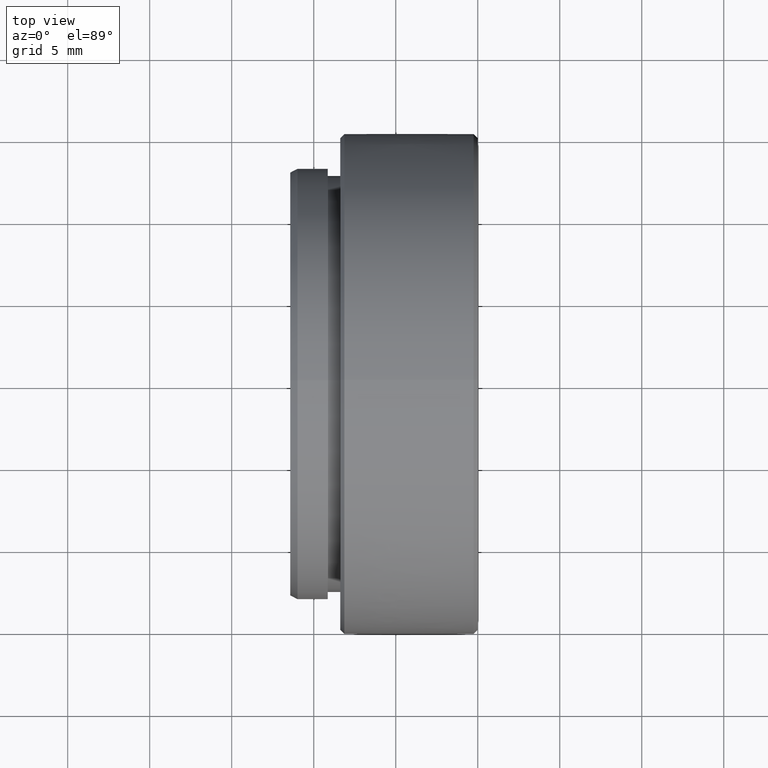
[diagram: clean part render]
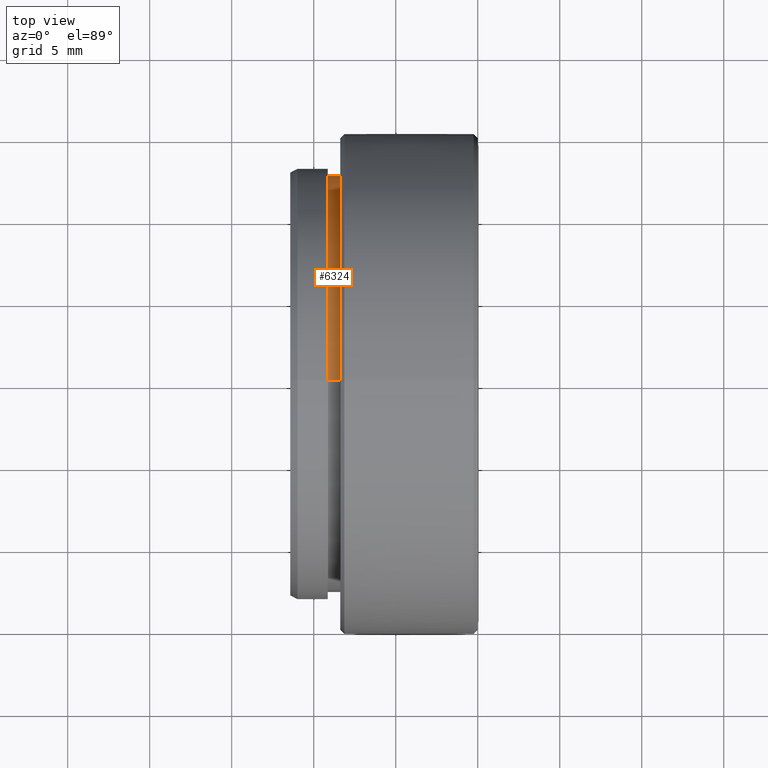
[diagram: same view with one face highlighted and labeled with its STEP entity id]
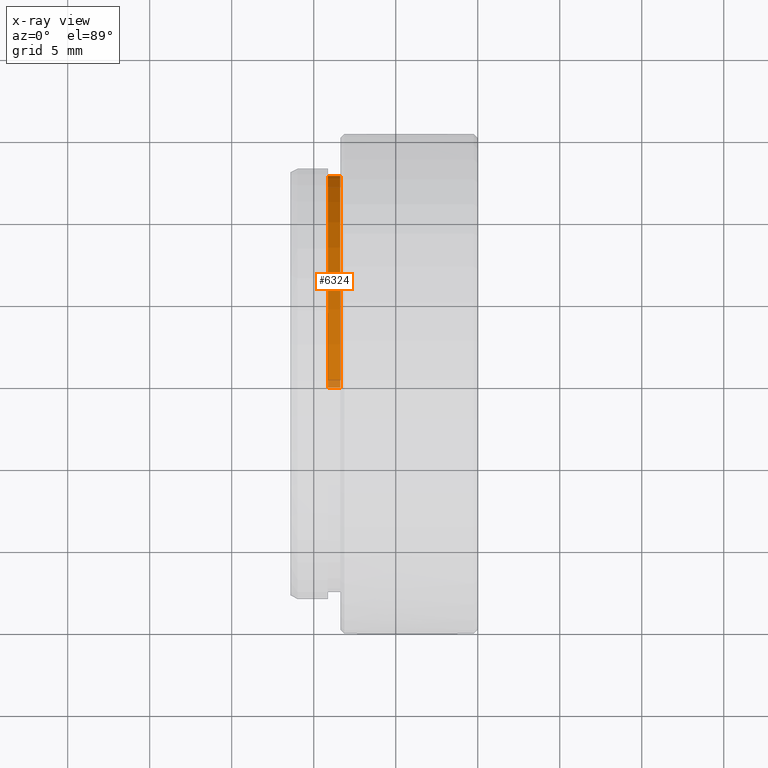
[diagram: x-ray of the same camera — body ghosted, the highlighted face saturated]
A machine part, top view. The second image highlights one B-rep face of the part: STEP entity #6324.
The next image is the same camera in x-ray: the body ghosted, the highlighted face saturated — about 4% of this face is hidden behind the body in this view.
In plain terms, the highlighted cylindrical surface (partial cylindrical patch) has radius 12.6873 mm, axis along (1, -0, -0).
Its self-contained STEP definition (entity closure, byte-faithful):
#53 = FACE_OUTER_BOUND ( 'NONE', #5750, .T. ) ;
#279 = VERTEX_POINT ( 'NONE', #4072 ) ;
#435 = DIRECTION ( 'NONE',  ( 1.000000000000000000, -0.0000000000000000000, -0.0000000000000000000 ) ) ;
#669 = DIRECTION ( 'NONE',  ( 0.0000000000000000000, 0.0000000000000000000, -1.000000000000000000 ) ) ;
#1334 = VECTOR ( 'NONE', #8875, 1000.000000000000000 ) ;
#1672 = CIRCLE ( 'NONE', #5642, 12.68729999999999869 ) ;
#2045 = AXIS2_PLACEMENT_3D ( 'NONE', #3116, #4567, #669 ) ;
#2066 = CARTESIAN_POINT ( 'NONE',  ( 0.0000000000000000000, 1.553746133482221126E-15, 12.68729999999999869 ) ) ;
#2073 = CARTESIAN_POINT ( 'NONE',  ( -8.382000000000001450, 0.0000000000000000000, 0.0000000000000000000 ) ) ;
#2126 = EDGE_CURVE ( 'NONE', #279, #2273, #5118, .T. ) ;
#2140 = CARTESIAN_POINT ( 'NONE',  ( -9.144000000000001904, 0.0000000000000000000, 0.0000000000000000000 ) ) ;
#2273 = VERTEX_POINT ( 'NONE', #2855 ) ;
#2855 = CARTESIAN_POINT ( 'NONE',  ( -8.382000000000001450, 1.553746133482221126E-15, 12.68729999999999869 ) ) ;
#2973 = EDGE_CURVE ( 'NONE', #3699, #279, #3293, .T. ) ;
#3116 = CARTESIAN_POINT ( 'NONE',  ( 0.0000000000000000000, 0.0000000000000000000, 0.0000000000000000000 ) ) ;
#3293 = CIRCLE ( 'NONE', #3590, 12.68730000000000047 ) ;
#3485 = ORIENTED_EDGE ( 'NONE', *, *, #2126, .T. ) ;
#3590 = AXIS2_PLACEMENT_3D ( 'NONE', #2140, #435, #9069 ) ;
#3699 = VERTEX_POINT ( 'NONE', #6798 ) ;
#4072 = CARTESIAN_POINT ( 'NONE',  ( -9.144000000000001904, 1.553746133482221521E-15, 12.68730000000000224 ) ) ;
#4235 = VECTOR ( 'NONE', #9490, 1000.000000000000000 ) ;
#4567 = DIRECTION ( 'NONE',  ( 1.000000000000000000, -0.0000000000000000000, -0.0000000000000000000 ) ) ;
#5118 = LINE ( 'NONE', #2066, #1334 ) ;
#5197 = ORIENTED_EDGE ( 'NONE', *, *, #8105, .F. ) ;
#5627 = CARTESIAN_POINT ( 'NONE',  ( 0.0000000000000000000, 0.0000000000000000000, -12.68729999999999869 ) ) ;
#5642 = AXIS2_PLACEMENT_3D ( 'NONE', #2073, #8941, #6642 ) ;
#5750 = EDGE_LOOP ( 'NONE', ( #7357, #3485, #5197, #10072 ) ) ;
#5902 = EDGE_CURVE ( 'NONE', #3699, #9223, #7152, .T. ) ;
#6324 = ADVANCED_FACE ( 'NONE', ( #53 ), #9328, .T. ) ;
#6339 = CARTESIAN_POINT ( 'NONE',  ( -8.382000000000001450, 0.0000000000000000000, -12.68729999999999869 ) ) ;
#6642 = DIRECTION ( 'NONE',  ( 0.0000000000000000000, 0.0000000000000000000, -1.000000000000000000 ) ) ;
#6798 = CARTESIAN_POINT ( 'NONE',  ( -9.144000000000001904, 0.0000000000000000000, -12.68730000000000047 ) ) ;
#7152 = LINE ( 'NONE', #5627, #4235 ) ;
#7357 = ORIENTED_EDGE ( 'NONE', *, *, #2973, .T. ) ;
#8105 = EDGE_CURVE ( 'NONE', #9223, #2273, #1672, .T. ) ;
#8875 = DIRECTION ( 'NONE',  ( 1.000000000000000000, -0.0000000000000000000, -0.0000000000000000000 ) ) ;
#8941 = DIRECTION ( 'NONE',  ( 1.000000000000000000, -0.0000000000000000000, -0.0000000000000000000 ) ) ;
#9069 = DIRECTION ( 'NONE',  ( 0.0000000000000000000, 0.0000000000000000000, -1.000000000000000000 ) ) ;
#9223 = VERTEX_POINT ( 'NONE', #6339 ) ;
#9328 = CYLINDRICAL_SURFACE ( 'NONE', #2045, 12.68729999999999869 ) ;
#9490 = DIRECTION ( 'NONE',  ( 1.000000000000000000, -0.0000000000000000000, -0.0000000000000000000 ) ) ;
#10072 = ORIENTED_EDGE ( 'NONE', *, *, #5902, .F. ) ;